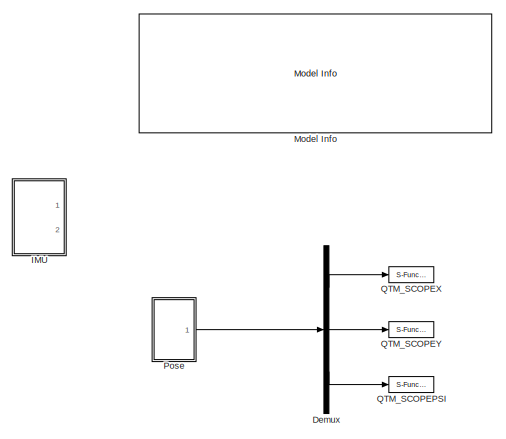
[diagram: root canvas - part 1/2, top left region]
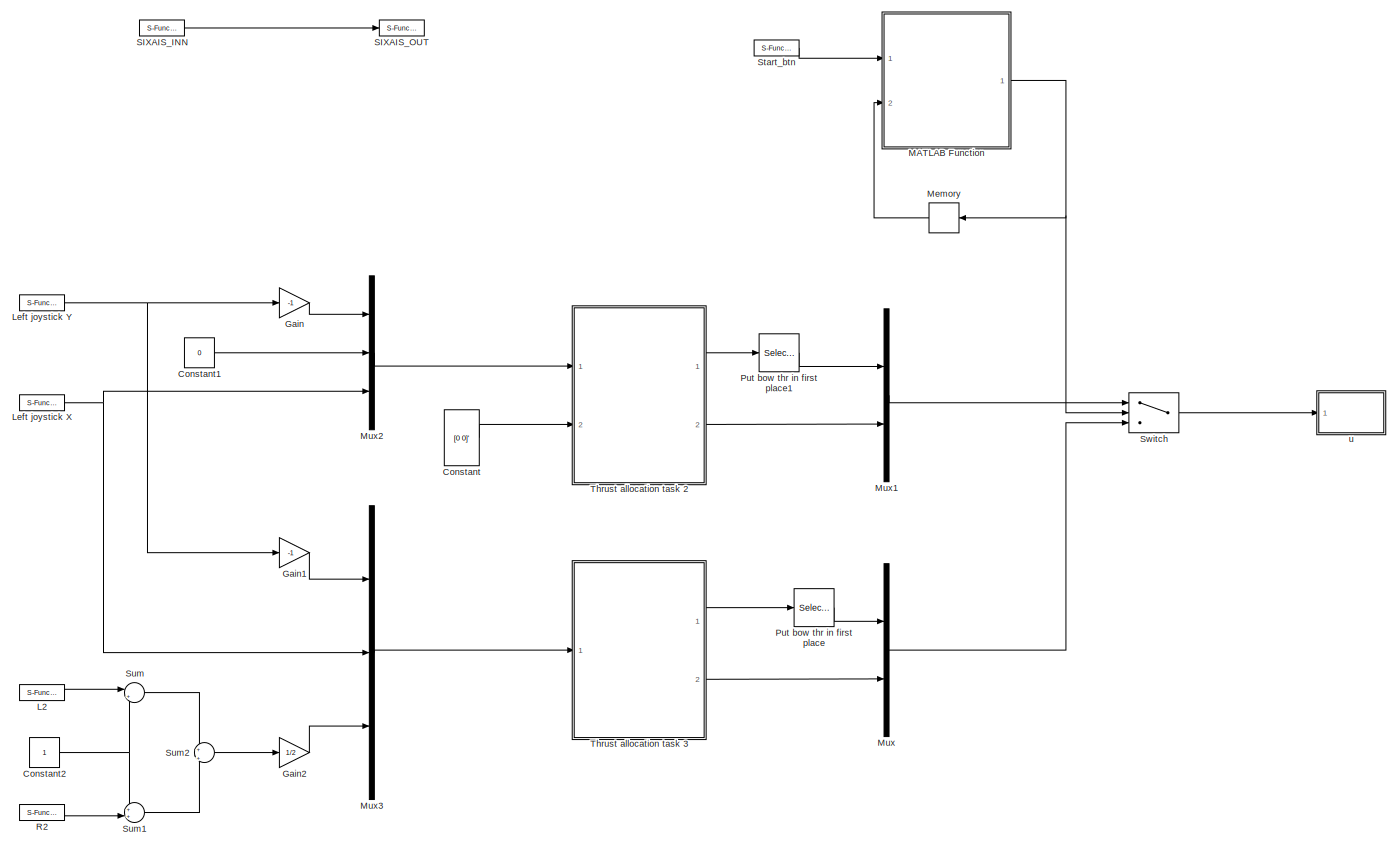
[diagram: root canvas - part 2/2, full width, bottom band]
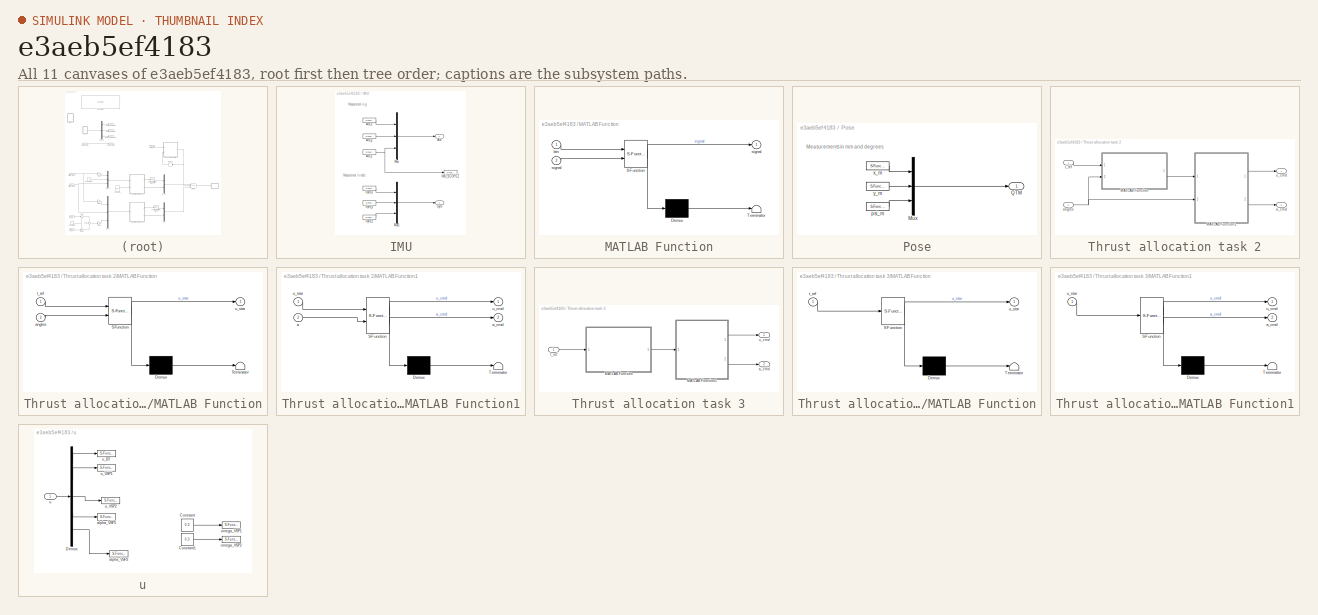
[diagram: thumbnail index - all 11 canvases of the model, root first then tree order]
MODEL slx_e3aeb5ef4183
KIND model
CONFIG AbsTol = auto
CONFIG EnableMultiTasking = on
CONFIG FixedStep = 0.01
CONFIG MaxStep = auto
CONFIG MinStep = auto
CONFIG RelTol = 1e-3
CONFIG SampleTimeConstraint = Unconstrained
CONFIG Solver = ode4
CONFIG SolverName = ode4
CONFIG StartTime = 0.0
CONFIG StopTime = inf
BLOCK [Constant] Constant
  Value = [0 0]'
  VectorParams1D = off
BLOCK [Constant] Constant1
  Value = 0
BLOCK [Constant] Constant2
BLOCK [Demux] Demux
  DisplayOption = bar
  Outputs = 3
  Ports = [1, 3]
BLOCK [Gain] Gain
  Gain = -1
  OutDataTypeStr = Inherit: Inherit via internal rule
  ParamDataTypeStr = Inherit: Inherit via internal rule
  SaturateOnIntegerOverflow = off
BLOCK [Gain] Gain1
  Gain = -1
  OutDataTypeStr = Inherit: Inherit via internal rule
  ParamDataTypeStr = Inherit: Inherit via internal rule
  SaturateOnIntegerOverflow = off
BLOCK [Gain] Gain2
  Gain = 1/2
  OutDataTypeStr = Inherit: Inherit via internal rule
  ParamDataTypeStr = Inherit: Inherit via internal rule
  SaturateOnIntegerOverflow = off
BLOCK [SubSystem] IMU
  Ports = [0, 2]
  RequestExecContextInheritance = off
  Variant = off
BLOCK [Outport] IMU/Acc
  IconDisplay = Port number
BLOCK [S-Function] IMU/Acc_x
  CopyFcn = NIVeriStand_MDL_functions('', 'IO_copy');
  DeleteFcn = NIVeriStand_MDL_functions('', 'IO_delete');
  EnableBusSupport = off
  FunctionName = NIVeriStandIO
  MoveFcn = set_param(gcb, 'Mask', 'on');
  Parameters = width dtype portnum stime stype btype
  Ports = [0, 1]
  Priority = 1
  SFcnIsStateOwnerBlock = off
  SFunctionDeploymentMode = off
BLOCK [S-Function] IMU/Acc_y
  CopyFcn = NIVeriStand_MDL_functions('', 'IO_copy');
  DeleteFcn = NIVeriStand_MDL_functions('', 'IO_delete');
  EnableBusSupport = off
  FunctionName = NIVeriStandIO
  MoveFcn = set_param(gcb, 'Mask', 'on');
  Parameters = width dtype portnum stime stype btype
  Ports = [0, 1]
  Priority = 2
  SFcnIsStateOwnerBlock = off
  SFunctionDeploymentMode = off
BLOCK [S-Function] IMU/Acc_z
  CopyFcn = NIVeriStand_MDL_functions('', 'IO_copy');
  DeleteFcn = NIVeriStand_MDL_functions('', 'IO_delete');
  EnableBusSupport = off
  FunctionName = NIVeriStandIO
  MoveFcn = set_param(gcb, 'Mask', 'on');
  Parameters = width dtype portnum stime stype btype
  Ports = [0, 1]
  Priority = 3
  SFcnIsStateOwnerBlock = off
  SFunctionDeploymentMode = off
BLOCK [Outport] IMU/Gyro
  IconDisplay = Port number
  Port = 2
BLOCK [S-Function] IMU/Gyro_x
  CopyFcn = NIVeriStand_MDL_functions('', 'IO_copy');
  DeleteFcn = NIVeriStand_MDL_functions('', 'IO_delete');
  EnableBusSupport = off
  FunctionName = NIVeriStandIO
  MoveFcn = set_param(gcb, 'Mask', 'on');
  Parameters = width dtype portnum stime stype btype
  Ports = [0, 1]
  Priority = 4
  SFcnIsStateOwnerBlock = off
  SFunctionDeploymentMode = off
BLOCK [S-Function] IMU/Gyro_y
  CopyFcn = NIVeriStand_MDL_functions('', 'IO_copy');
  DeleteFcn = NIVeriStand_MDL_functions('', 'IO_delete');
  EnableBusSupport = off
  FunctionName = NIVeriStandIO
  MoveFcn = set_param(gcb, 'Mask', 'on');
  Parameters = width dtype portnum stime stype btype
  Ports = [0, 1]
  Priority = 5
  SFcnIsStateOwnerBlock = off
  SFunctionDeploymentMode = off
BLOCK [S-Function] IMU/Gyro_z
  CopyFcn = NIVeriStand_MDL_functions('', 'IO_copy');
  DeleteFcn = NIVeriStand_MDL_functions('', 'IO_delete');
  EnableBusSupport = off
  FunctionName = NIVeriStandIO
  MoveFcn = set_param(gcb, 'Mask', 'on');
  Parameters = width dtype portnum stime stype btype
  Ports = [0, 1]
  Priority = 6
  SFcnIsStateOwnerBlock = off
  SFunctionDeploymentMode = off
BLOCK [S-Function] IMU/IMU_SCOPEZ
  CopyFcn = NIVeriStand_MDL_functions('', 'IO_copy');
  DeleteFcn = NIVeriStand_MDL_functions('', 'IO_delete');
  EnableBusSupport = off
  FunctionName = NIVeriStandIO
  MoveFcn = set_param(gcb, 'Mask', 'on');
  Parameters = width dtype portnum stime stype btype
  Ports = [1]
  Priority = 1
  SFcnIsStateOwnerBlock = off
  SFunctionDeploymentMode = off
BLOCK [Mux] IMU/Mux
  DisplayOption = bar
  Inputs = 3
  Ports = [3, 1]
BLOCK [Mux] IMU/Mux1
  DisplayOption = bar
  Inputs = 3
  Ports = [3, 1]
BLOCK [S-Function] L2
  CopyFcn = NIVeriStand_MDL_functions('', 'IO_copy');
  DeleteFcn = NIVeriStand_MDL_functions('', 'IO_delete');
  EnableBusSupport = off
  FunctionName = NIVeriStandIO
  MoveFcn = set_param(gcb, 'Mask', 'on');
  Parameters = width dtype portnum stime stype btype
  Ports = [0, 1]
  Priority = 4
  SFcnIsStateOwnerBlock = off
  SFunctionDeploymentMode = off
BLOCK [S-Function] Left joystick X
  CopyFcn = NIVeriStand_MDL_functions('', 'IO_copy');
  DeleteFcn = NIVeriStand_MDL_functions('', 'IO_delete');
  EnableBusSupport = off
  FunctionName = NIVeriStandIO
  MoveFcn = set_param(gcb, 'Mask', 'on');
  Parameters = width dtype portnum stime stype btype
  Ports = [0, 1]
  Priority = 2
  SFcnIsStateOwnerBlock = off
  SFunctionDeploymentMode = off
BLOCK [S-Function] Left joystick Y
  CopyFcn = NIVeriStand_MDL_functions('', 'IO_copy');
  DeleteFcn = NIVeriStand_MDL_functions('', 'IO_delete');
  EnableBusSupport = off
  FunctionName = NIVeriStandIO
  MoveFcn = set_param(gcb, 'Mask', 'on');
  Parameters = width dtype portnum stime stype btype
  Ports = [0, 1]
  Priority = 3
  SFcnIsStateOwnerBlock = off
  SFunctionDeploymentMode = off
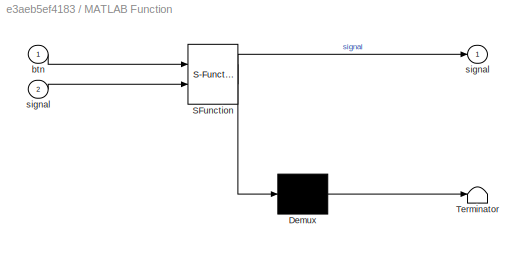
BLOCK [SubSystem] MATLAB Function
  ErrorFcn = Stateflow.Translate.translate
  PermitHierarchicalResolution = ExplicitOnly
  Ports = [2, 1]
  RequestExecContextInheritance = off
  SFBlockType = MATLAB Function
  TreatAsAtomicUnit = on
  Variant = off
BLOCK [Demux] MATLAB Function/ Demux 
  Outputs = 1
  Ports = [1, 1]
BLOCK [S-Function] MATLAB Function/ SFunction 
  EnableBusSupport = on
  FunctionName = sf_sfun
  PortCounts = [2 2]
  Ports = [2, 2]
  SFcnIsStateOwnerBlock = off
  SFunctionDeploymentMode = off
  Tag = Stateflow S-Function ctrl_custom 16
BLOCK [Terminator] MATLAB Function/ Terminator 
BLOCK [Inport] MATLAB Function/btn
  IconDisplay = Port number
BLOCK [Outport] MATLAB Function/signal
  IconDisplay = Port number
BLOCK [Inport] MATLAB Function/signal 
  IconDisplay = Port number
  Port = 2
BLOCK [Memory] Memory
BLOCK [Reference] Model Info  REF=simulink/Model-Wide
Utilities/Model Info
  Ports = []
  SourceBlock = simulink/Model-Wide\nUtilities/Model Info
  SourceType = CMBlock
BLOCK [Mux] Mux
  DisplayOption = bar
  Inputs = 2
  Ports = [2, 1]
BLOCK [Mux] Mux1
  DisplayOption = bar
  Inputs = 2
  Ports = [2, 1]
BLOCK [Mux] Mux2
  DisplayOption = bar
  Inputs = 3
  Ports = [3, 1]
BLOCK [Mux] Mux3
  DisplayOption = bar
  Inputs = 3
  Ports = [3, 1]
BLOCK [SubSystem] Pose
  Ports = [0, 1]
  RequestExecContextInheritance = off
  Variant = off
BLOCK [Mux] Pose/Mux
  DisplayOption = bar
  Inputs = 3
  Ports = [3, 1]
BLOCK [Outport] Pose/QTM
  IconDisplay = Port number
BLOCK [S-Function] Pose/psi_m
  CopyFcn = NIVeriStand_MDL_functions('', 'IO_copy');
  DeleteFcn = NIVeriStand_MDL_functions('', 'IO_delete');
  EnableBusSupport = off
  FunctionName = NIVeriStandIO
  MoveFcn = set_param(gcb, 'Mask', 'on');
  Parameters = width dtype portnum stime stype btype
  Ports = [0, 1]
  Priority = 3
  SFcnIsStateOwnerBlock = off
  SFunctionDeploymentMode = off
BLOCK [S-Function] Pose/x_m
  CopyFcn = NIVeriStand_MDL_functions('', 'IO_copy');
  DeleteFcn = NIVeriStand_MDL_functions('', 'IO_delete');
  EnableBusSupport = off
  FunctionName = NIVeriStandIO
  MoveFcn = set_param(gcb, 'Mask', 'on');
  Parameters = width dtype portnum stime stype btype
  Ports = [0, 1]
  Priority = 1
  SFcnIsStateOwnerBlock = off
  SFunctionDeploymentMode = off
BLOCK [S-Function] Pose/y_m
  CopyFcn = NIVeriStand_MDL_functions('', 'IO_copy');
  DeleteFcn = NIVeriStand_MDL_functions('', 'IO_delete');
  EnableBusSupport = off
  FunctionName = NIVeriStandIO
  MoveFcn = set_param(gcb, 'Mask', 'on');
  Parameters = width dtype portnum stime stype btype
  Ports = [0, 1]
  Priority = 2
  SFcnIsStateOwnerBlock = off
  SFunctionDeploymentMode = off
BLOCK [Selector] Put bow thr in first place
  IndexOptions = Index vector (dialog)
  Indices = [3 1 2]
  InputPortWidth = 3
  OutputSizes = 1
  Ports = [1, 1]
BLOCK [Selector] Put bow thr in first place1
  IndexOptions = Index vector (dialog)
  Indices = [3 1 2]
  InputPortWidth = 3
  OutputSizes = 1
  Ports = [1, 1]
BLOCK [S-Function] QTM_SCOPEPSI
  CopyFcn = NIVeriStand_MDL_functions('', 'IO_copy');
  DeleteFcn = NIVeriStand_MDL_functions('', 'IO_delete');
  EnableBusSupport = off
  FunctionName = NIVeriStandIO
  MoveFcn = set_param(gcb, 'Mask', 'on');
  Parameters = width dtype portnum stime stype btype
  Ports = [1]
  Priority = 11
  SFcnIsStateOwnerBlock = off
  SFunctionDeploymentMode = off
BLOCK [S-Function] QTM_SCOPEX
  CopyFcn = NIVeriStand_MDL_functions('', 'IO_copy');
  DeleteFcn = NIVeriStand_MDL_functions('', 'IO_delete');
  EnableBusSupport = off
  FunctionName = NIVeriStandIO
  MoveFcn = set_param(gcb, 'Mask', 'on');
  Parameters = width dtype portnum stime stype btype
  Ports = [1]
  Priority = 9
  SFcnIsStateOwnerBlock = off
  SFunctionDeploymentMode = off
BLOCK [S-Function] QTM_SCOPEY
  CopyFcn = NIVeriStand_MDL_functions('', 'IO_copy');
  DeleteFcn = NIVeriStand_MDL_functions('', 'IO_delete');
  EnableBusSupport = off
  FunctionName = NIVeriStandIO
  MoveFcn = set_param(gcb, 'Mask', 'on');
  Parameters = width dtype portnum stime stype btype
  Ports = [1]
  Priority = 10
  SFcnIsStateOwnerBlock = off
  SFunctionDeploymentMode = off
BLOCK [S-Function] R2
  CopyFcn = NIVeriStand_MDL_functions('', 'IO_copy');
  DeleteFcn = NIVeriStand_MDL_functions('', 'IO_delete');
  EnableBusSupport = off
  FunctionName = NIVeriStandIO
  MoveFcn = set_param(gcb, 'Mask', 'on');
  Parameters = width dtype portnum stime stype btype
  Ports = [0, 1]
  Priority = 5
  SFcnIsStateOwnerBlock = off
  SFunctionDeploymentMode = off
BLOCK [S-Function] SIXAIS_INN
  CopyFcn = NIVeriStand_MDL_functions('', 'IO_copy');
  DeleteFcn = NIVeriStand_MDL_functions('', 'IO_delete');
  EnableBusSupport = off
  FunctionName = NIVeriStandIO
  MoveFcn = set_param(gcb, 'Mask', 'on');
  Parameters = width dtype portnum stime stype btype
  Ports = [0, 1]
  Priority = 1
  SFcnIsStateOwnerBlock = off
  SFunctionDeploymentMode = off
BLOCK [S-Function] SIXAIS_OUT
  CopyFcn = NIVeriStand_MDL_functions('', 'IO_copy');
  DeleteFcn = NIVeriStand_MDL_functions('', 'IO_delete');
  EnableBusSupport = off
  FunctionName = NIVeriStandIO
  MoveFcn = set_param(gcb, 'Mask', 'on');
  Parameters = width dtype portnum stime stype btype
  Ports = [1]
  Priority = 8
  SFcnIsStateOwnerBlock = off
  SFunctionDeploymentMode = off
BLOCK [S-Function] Start_btn
  CopyFcn = NIVeriStand_MDL_functions('', 'IO_copy');
  DeleteFcn = NIVeriStand_MDL_functions('', 'IO_delete');
  EnableBusSupport = off
  FunctionName = NIVeriStandIO
  MoveFcn = set_param(gcb, 'Mask', 'on');
  Parameters = width dtype portnum stime stype btype
  Ports = [0, 1]
  Priority = 8
  SFcnIsStateOwnerBlock = off
  SFunctionDeploymentMode = off
BLOCK [Sum] Sum
  IconShape = round
  InputSameDT = off
  Inputs = |++
  OutDataTypeStr = Inherit: Inherit via internal rule
  Ports = [2, 1]
  SaturateOnIntegerOverflow = off
BLOCK [Sum] Sum1
  IconShape = round
  InputSameDT = off
  Inputs = ++|
  OutDataTypeStr = Inherit: Inherit via internal rule
  Ports = [2, 1]
  SaturateOnIntegerOverflow = off
BLOCK [Sum] Sum2
  IconShape = round
  InputSameDT = off
  Inputs = +|+
  OutDataTypeStr = Inherit: Inherit via internal rule
  Ports = [2, 1]
  SaturateOnIntegerOverflow = off
BLOCK [Switch] Switch
  Criteria = u2 > Threshold
  InputSameDT = off
  SaturateOnIntegerOverflow = off
BLOCK [SubSystem] Thrust allocation task 2
  Ports = [2, 2]
  RequestExecContextInheritance = off
  Variant = off
BLOCK [SubSystem] Thrust allocation task 2/MATLAB Function
  ErrorFcn = Stateflow.Translate.translate
  PermitHierarchicalResolution = ExplicitOnly
  Ports = [2, 1]
  RequestExecContextInheritance = off
  SFBlockType = MATLAB Function
  TreatAsAtomicUnit = on
  Variant = off
BLOCK [Demux] Thrust allocation task 2/MATLAB Function/ Demux 
  Outputs = 1
  Ports = [1, 1]
BLOCK [S-Function] Thrust allocation task 2/MATLAB Function/ SFunction 
  EnableBusSupport = on
  FunctionName = sf_sfun
  PortCounts = [2 2]
  Ports = [2, 2]
  SFcnIsStateOwnerBlock = off
  SFunctionDeploymentMode = off
  Tag = Stateflow S-Function ctrl_custom 6
BLOCK [Terminator] Thrust allocation task 2/MATLAB Function/ Terminator 
BLOCK [Inport] Thrust allocation task 2/MATLAB Function/angles
  IconDisplay = Port number
  Port = 2
BLOCK [Inport] Thrust allocation task 2/MATLAB Function/t_ref
  IconDisplay = Port number
BLOCK [Outport] Thrust allocation task 2/MATLAB Function/u_star
  IconDisplay = Port number
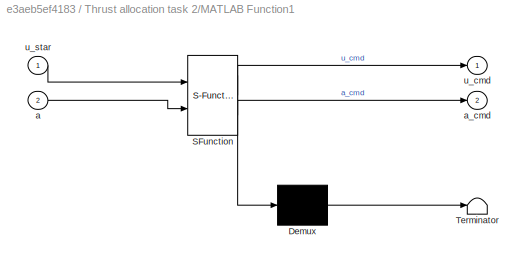
BLOCK [SubSystem] Thrust allocation task 2/MATLAB Function1
  ErrorFcn = Stateflow.Translate.translate
  PermitHierarchicalResolution = ExplicitOnly
  Ports = [2, 2]
  RequestExecContextInheritance = off
  SFBlockType = MATLAB Function
  TreatAsAtomicUnit = on
  Variant = off
BLOCK [Demux] Thrust allocation task 2/MATLAB Function1/ Demux 
  Outputs = 1
  Ports = [1, 1]
BLOCK [S-Function] Thrust allocation task 2/MATLAB Function1/ SFunction 
  EnableBusSupport = on
  FunctionName = sf_sfun
  PortCounts = [2 3]
  Ports = [2, 3]
  SFcnIsStateOwnerBlock = off
  SFunctionDeploymentMode = off
  Tag = Stateflow S-Function ctrl_custom 15
BLOCK [Terminator] Thrust allocation task 2/MATLAB Function1/ Terminator 
BLOCK [Inport] Thrust allocation task 2/MATLAB Function1/a
  IconDisplay = Port number
  Port = 2
BLOCK [Outport] Thrust allocation task 2/MATLAB Function1/a_cmd
  IconDisplay = Port number
  Port = 2
BLOCK [Outport] Thrust allocation task 2/MATLAB Function1/u_cmd
  IconDisplay = Port number
BLOCK [Inport] Thrust allocation task 2/MATLAB Function1/u_star
  IconDisplay = Port number
BLOCK [Outport] Thrust allocation task 2/a_cmd
  IconDisplay = Port number
  Port = 2
BLOCK [Inport] Thrust allocation task 2/angles
  IconDisplay = Port number
  Port = 2
BLOCK [Inport] Thrust allocation task 2/t_ref
  IconDisplay = Port number
BLOCK [Outport] Thrust allocation task 2/u_cmd
  IconDisplay = Port number
BLOCK [SubSystem] Thrust allocation task 3
  Ports = [1, 2]
  RequestExecContextInheritance = off
  Variant = off
BLOCK [SubSystem] Thrust allocation task 3/MATLAB Function
  ErrorFcn = Stateflow.Translate.translate
  PermitHierarchicalResolution = ExplicitOnly
  Ports = [1, 1]
  RequestExecContextInheritance = off
  SFBlockType = MATLAB Function
  TreatAsAtomicUnit = on
  Variant = off
BLOCK [Demux] Thrust allocation task 3/MATLAB Function/ Demux 
  Outputs = 1
  Ports = [1, 1]
BLOCK [S-Function] Thrust allocation task 3/MATLAB Function/ SFunction 
  EnableBusSupport = on
  FunctionName = sf_sfun
  PortCounts = [1 2]
  Ports = [1, 2]
  SFcnIsStateOwnerBlock = off
  SFunctionDeploymentMode = off
  Tag = Stateflow S-Function ctrl_custom 5
BLOCK [Terminator] Thrust allocation task 3/MATLAB Function/ Terminator 
BLOCK [Inport] Thrust allocation task 3/MATLAB Function/t_ref
  IconDisplay = Port number
BLOCK [Outport] Thrust allocation task 3/MATLAB Function/u_star
  IconDisplay = Port number
BLOCK [SubSystem] Thrust allocation task 3/MATLAB Function1
  ErrorFcn = Stateflow.Translate.translate
  PermitHierarchicalResolution = ExplicitOnly
  Ports = [1, 2]
  RequestExecContextInheritance = off
  SFBlockType = MATLAB Function
  TreatAsAtomicUnit = on
  Variant = off
BLOCK [Demux] Thrust allocation task 3/MATLAB Function1/ Demux 
  Outputs = 1
  Ports = [1, 1]
BLOCK [S-Function] Thrust allocation task 3/MATLAB Function1/ SFunction 
  EnableBusSupport = on
  FunctionName = sf_sfun
  PortCounts = [1 3]
  Ports = [1, 3]
  SFcnIsStateOwnerBlock = off
  SFunctionDeploymentMode = off
  Tag = Stateflow S-Function ctrl_custom 11
BLOCK [Terminator] Thrust allocation task 3/MATLAB Function1/ Terminator 
BLOCK [Outport] Thrust allocation task 3/MATLAB Function1/a_cmd
  IconDisplay = Port number
  Port = 2
BLOCK [Outport] Thrust allocation task 3/MATLAB Function1/u_cmd
  IconDisplay = Port number
BLOCK [Inport] Thrust allocation task 3/MATLAB Function1/u_star
  IconDisplay = Port number
BLOCK [Outport] Thrust allocation task 3/a_cmd
  IconDisplay = Port number
  Port = 2
BLOCK [Inport] Thrust allocation task 3/t_ref
  IconDisplay = Port number
BLOCK [Outport] Thrust allocation task 3/u_cmd
  IconDisplay = Port number
BLOCK [SubSystem] u
  Ports = [1]
  RequestExecContextInheritance = off
  Variant = off
BLOCK [Constant] u/Constant
  Value = 0.3
BLOCK [Constant] u/Constant1
  Value = 0.3
BLOCK [Demux] u/Demux
  DisplayOption = bar
  Outputs = 5
  Ports = [1, 5]
BLOCK [S-Function] u/alpha_VSP1
  CopyFcn = NIVeriStand_MDL_functions('', 'IO_copy');
  DeleteFcn = NIVeriStand_MDL_functions('', 'IO_delete');
  EnableBusSupport = off
  FunctionName = NIVeriStandIO
  MoveFcn = set_param(gcb, 'Mask', 'on');
  Parameters = width dtype portnum stime stype btype
  Ports = [1]
  Priority = 4
  SFcnIsStateOwnerBlock = off
  SFunctionDeploymentMode = off
BLOCK [S-Function] u/alpha_VSP2
  CopyFcn = NIVeriStand_MDL_functions('', 'IO_copy');
  DeleteFcn = NIVeriStand_MDL_functions('', 'IO_delete');
  EnableBusSupport = off
  FunctionName = NIVeriStandIO
  MoveFcn = set_param(gcb, 'Mask', 'on');
  Parameters = width dtype portnum stime stype btype
  Ports = [1]
  Priority = 1
  SFcnIsStateOwnerBlock = off
  SFunctionDeploymentMode = off
BLOCK [S-Function] u/omega_VSP1
  CopyFcn = NIVeriStand_MDL_functions('', 'IO_copy');
  DeleteFcn = NIVeriStand_MDL_functions('', 'IO_delete');
  EnableBusSupport = off
  FunctionName = NIVeriStandIO
  MoveFcn = set_param(gcb, 'Mask', 'on');
  Parameters = width dtype portnum stime stype btype
  Ports = [1]
  Priority = 2
  SFcnIsStateOwnerBlock = off
  SFunctionDeploymentMode = off
BLOCK [S-Function] u/omega_VSP2
  CopyFcn = NIVeriStand_MDL_functions('', 'IO_copy');
  DeleteFcn = NIVeriStand_MDL_functions('', 'IO_delete');
  EnableBusSupport = off
  FunctionName = NIVeriStandIO
  MoveFcn = set_param(gcb, 'Mask', 'on');
  Parameters = width dtype portnum stime stype btype
  Ports = [1]
  Priority = 3
  SFcnIsStateOwnerBlock = off
  SFunctionDeploymentMode = off
BLOCK [Inport] u/u
  IconDisplay = Port number
BLOCK [S-Function] u/u_BT
  CopyFcn = NIVeriStand_MDL_functions('', 'IO_copy');
  DeleteFcn = NIVeriStand_MDL_functions('', 'IO_delete');
  EnableBusSupport = off
  FunctionName = NIVeriStandIO
  MoveFcn = set_param(gcb, 'Mask', 'on');
  Parameters = width dtype portnum stime stype btype
  Ports = [1]
  Priority = 5
  SFcnIsStateOwnerBlock = off
  SFunctionDeploymentMode = off
BLOCK [S-Function] u/u_VSP1
  CopyFcn = NIVeriStand_MDL_functions('', 'IO_copy');
  DeleteFcn = NIVeriStand_MDL_functions('', 'IO_delete');
  EnableBusSupport = off
  FunctionName = NIVeriStandIO
  MoveFcn = set_param(gcb, 'Mask', 'on');
  Parameters = width dtype portnum stime stype btype
  Ports = [1]
  Priority = 6
  SFcnIsStateOwnerBlock = off
  SFunctionDeploymentMode = off
BLOCK [S-Function] u/u_VSP2
  CopyFcn = NIVeriStand_MDL_functions('', 'IO_copy');
  DeleteFcn = NIVeriStand_MDL_functions('', 'IO_delete');
  EnableBusSupport = off
  FunctionName = NIVeriStandIO
  MoveFcn = set_param(gcb, 'Mask', 'on');
  Parameters = width dtype portnum stime stype btype
  Ports = [1]
  Priority = 7
  SFcnIsStateOwnerBlock = off
  SFunctionDeploymentMode = off
ANNOTATION IMU: Measurement in g
ANNOTATION IMU: Measurement in rad/s
ANNOTATION Pose: Measurements in mm and degrees
LINE Constant1:1 -> Mux2:2
NET Constant2:1 -> Sum1:1, Sum:2
LINE Constant:1 -> Thrust allocation task 2:2
LINE Demux:1 -> QTM_SCOPEX:1
LINE Demux:2 -> QTM_SCOPEY:1
LINE Demux:3 -> QTM_SCOPEPSI:1
LINE Gain1:1 -> Mux3:1
LINE Gain2:1 -> Mux3:3
LINE Gain:1 -> Mux2:1
LINE IMU/Acc_x:1 -> IMU/Mux:1
LINE IMU/Acc_y:1 -> IMU/Mux:2
NET IMU/Acc_z:1 -> IMU/IMU_SCOPEZ:1, IMU/Mux:3
LINE IMU/Gyro_x:1 -> IMU/Mux1:1
LINE IMU/Gyro_y:1 -> IMU/Mux1:2
LINE IMU/Gyro_z:1 -> IMU/Mux1:3
LINE IMU/Mux1:1 -> IMU/Gyro:1
LINE IMU/Mux:1 -> IMU/Acc:1
LINE L2:1 -> Sum:1
NET Left joystick X:1 -> Mux2:3, Mux3:2
NET Left joystick Y:1 -> Gain1:1, Gain:1
NET MATLAB Function:1 -> Memory:1, Switch:2
LINE Memory:1 -> MATLAB Function:2
LINE Mux1:1 -> Switch:1
LINE Mux2:1 -> Thrust allocation task 2:1
LINE Mux3:1 -> Thrust allocation task 3:1
LINE Mux:1 -> Switch:3
LINE Pose/Mux:1 -> Pose/QTM:1
LINE Pose/psi_m:1 -> Pose/Mux:3
LINE Pose/x_m:1 -> Pose/Mux:1
LINE Pose/y_m:1 -> Pose/Mux:2
LINE Pose:1 -> Demux:1
LINE Put bow thr in first place1:1 -> Mux1:1
LINE Put bow thr in first place:1 -> Mux:1
LINE R2:1 -> Sum1:2
LINE SIXAIS_INN:1 -> SIXAIS_OUT:1
LINE Start_btn:1 -> MATLAB Function:1
LINE Sum1:1 -> Sum2:2
LINE Sum2:1 -> Gain2:1
LINE Sum:1 -> Sum2:1
LINE Switch:1 -> u:1
LINE Thrust allocation task 2/MATLAB Function1:1 -> Thrust allocation task 2/u_cmd:1
LINE Thrust allocation task 2/MATLAB Function1:2 -> Thrust allocation task 2/a_cmd:1
LINE Thrust allocation task 2/MATLAB Function:1 -> Thrust allocation task 2/MATLAB Function1:1
NET Thrust allocation task 2/angles:1 -> Thrust allocation task 2/MATLAB Function1:2, Thrust allocation task 2/MATLAB Function:2
LINE Thrust allocation task 2/t_ref:1 -> Thrust allocation task 2/MATLAB Function:1
LINE Thrust allocation task 2:1 -> Put bow thr in first place1:1
LINE Thrust allocation task 2:2 -> Mux1:2
LINE Thrust allocation task 3/MATLAB Function1:1 -> Thrust allocation task 3/u_cmd:1
LINE Thrust allocation task 3/MATLAB Function1:2 -> Thrust allocation task 3/a_cmd:1
LINE Thrust allocation task 3/MATLAB Function:1 -> Thrust allocation task 3/MATLAB Function1:1
LINE Thrust allocation task 3/t_ref:1 -> Thrust allocation task 3/MATLAB Function:1
LINE Thrust allocation task 3:1 -> Put bow thr in first place:1
LINE Thrust allocation task 3:2 -> Mux:2
LINE u/Constant1:1 -> u/omega_VSP2:1
LINE u/Constant:1 -> u/omega_VSP1:1
LINE u/Demux:1 -> u/u_BT:1
LINE u/Demux:2 -> u/u_VSP1:1
LINE u/Demux:3 -> u/u_VSP2:1
LINE u/Demux:4 -> u/alpha_VSP1:1
LINE u/Demux:5 -> u/alpha_VSP2:1
LINE u/u:1 -> u/Demux:1
note: NET lines group one-source signal fan-out (src -> all destinations, sorted); 1:1 wires keep LINE
CHART Thrust allocation task 3/MATLAB Function states=1 transitions=1
  STATE_LABEL 'eML_blk_kernel()'
  STATE_LABEL 'SCRIPT:\nfunction u_star = thrust_allocation_3(t_ref)\n\n% parameters\nlx_1 = 0.3875;\nlx_2 = -0.4574;\nly_1 = 0.055;\nly_2 = -0.055;\n\nK1 = 1.03;\nK2 = K1;\nK3 = 2.629;\n\nK = diag([K1, K1, K2, K2, K3]);\nB = [\n    1 0 1 0 0;\n    0 1 0 1 1;\n    ly_1 lx_2 ly_2 lx_2 lx_1;\n];\n\n% Calculate thrust cmd using pseude inverse method\nu_star = pinv(B*K)*t_ref;\n\nend\n\n'
CHART Thrust allocation task 2/MATLAB Function states=1 transitions=1
  STATE_LABEL 'eML_blk_kernel()'
  STATE_LABEL 'SCRIPT:\nfunction u_star = thrust_allocation_2(t_ref, angles)\n% Calculates thrust and vsp angles for set angles\n\n% Parameters\nlx_1 = 0.3875;\nlx_2 = -0.4574;\nly_1 = 0.055;\nly_2 = -0.055;\n\nK1 = 1.03;\nK2 = K1;\nK3 = 2.629;\n\na1 = angles(1);\na2 = angles(2);\n\nB = [cos(a1) cos(a2) 0; \n    sin(a1) sin(a2) 1; \n    lx_2*sin(a1)-ly_1*cos(a2) lx_2*sin(a2)-ly_2*cos(a2) lx_1];\nK = diag([K1, K2, K3]);\n\n% Calculate...<+64ch>'
CHART Thrust allocation task 3/MATLAB Function1 states=1 transitions=1
  STATE_LABEL 'eML_blk_kernel()'
  STATE_LABEL "SCRIPT:\nfunction [u_cmd, a_cmd] = gamma_procedure(u_star)\n% param u_decomposed = [u1_x, u1_y, u2_x, u2_y, u3]\n% this function maps u_decomposed to its thruster input and angles\n\n% TODO: limit output u to [0,1]?\n\n% initialize output values\nu_cmd = [0 0 0]';\na_cmd = [0 0]';\n\nu1_x = u_star(1);\nu1_y = u_star(2);\nu2_x = u_star(3);\nu2_y = u_star(4);\nu_cmd(3) = u_star(5);\n\na_cmd(1) = atan2(u1_y, u1_x);\na...<+98ch>"
CHART Thrust allocation task 2/MATLAB Function1 states=1 transitions=1
  STATE_LABEL 'eML_blk_kernel()'
  STATE_LABEL "SCRIPT:\nfunction [u_cmd, a_cmd] = make_thrust_valid(u_star, a)\n% Flips angle and thrust if thrust is negative\n\n% initialize outputs\nu_cmd = [0 0 0]';\na_cmd = [0 0]';\n\nif u_star(1) < 0\n    % flip thrust\n    u_cmd(1) = - u_star(1);\n    \n    % flip angle\n    if a(1) < 0\n        a_cmd(1) = a(1) + pi;\n    else\n        a_cmd(1) = a(1) - pi;\n    end\nelse\n    a_cmd(1) = a(1);\n    u_cmd(1) = u_star(1);\nend...<+273ch>"
CHART MATLAB Function states=1 transitions=1
  STATE_LABEL 'eML_blk_kernel()'
  STATE_LABEL 'SCRIPT:\nfunction signal = switch_signal(btn, signal)\n\n if btn\n     if signal\n         signal = 0;\n     else\n         signal = 1;\n     end\n end\n \n \nend\n'
